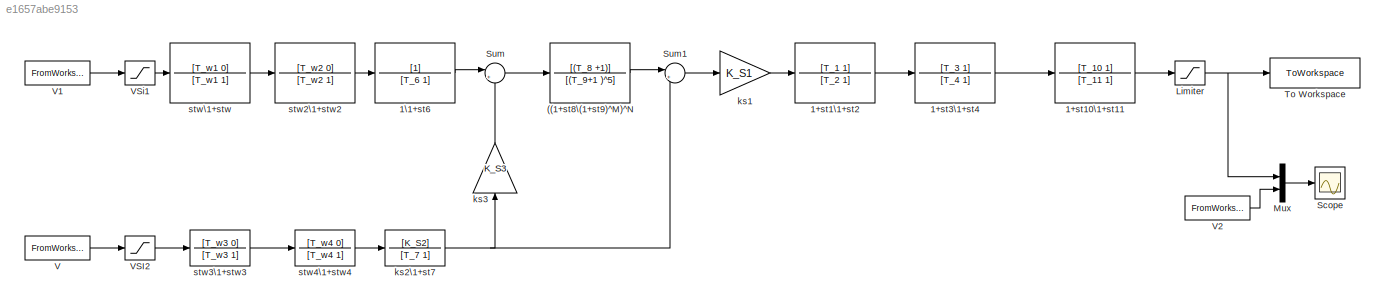
MODEL slx_e1657abe9153
KIND model
CONFIG AbsTol = auto
CONFIG EnableMultiTasking = off
CONFIG FixedStep = 0.005
CONFIG MaxStep = auto
CONFIG MinStep = auto
CONFIG RelTol = 1e-3
CONFIG SampleTimeConstraint = Unconstrained
CONFIG Solver = FixedStepAuto
CONFIG SolverName = FixedStepAuto
CONFIG StartTime = 0.0
CONFIG StopTime = 5
BLOCK [TransferFcn] ((1+st8\(1+st9)^M)^N
  Denominator = [(T_9+1 )^5]
  Numerator = [(T_8 +1)]
BLOCK [TransferFcn] 1+st10\1+st11
  Denominator = [T_11 1]
  Numerator = [T_10 1]
BLOCK [TransferFcn] 1+st1\1+st2
  Denominator = [T_2 1]
  Numerator = [T_1 1]
BLOCK [TransferFcn] 1+st3\1+st4
  Denominator = [T_4 1]
  Numerator = [T_3 1]
BLOCK [TransferFcn] 1\1+st6
  Denominator = [T_6 1]
BLOCK [Saturate] Limiter 
  LowerLimit = V_STMIN
  UpperLimit = V_STMAX
BLOCK [Mux] Mux
  DisplayOption = bar
  Inputs = 2
  Ports = [2, 1]
BLOCK [Scope] Scope
  Floating = off
  NumInputPorts = 1
  Ports = [1]
  ScopeSpecificationString = Simulink.scopes.TimeScopeBlockCfg('CurrentConfiguration', extmgr.ConfigurationSet(extmgr.Configuration('Core','General UI',true,'FigureColor',[1 1 1]),extmgr.Configuration('Core','Source UI',true),extmgr.Configuration('Sources','WiredSimulink',true),extmgr.Configuration('Visuals','Time Domain',true,'SerializedDisplays',{struct('MinYLimReal','-0.0262','MaxYLimReal','0.01056','YLabelReal','','MinYLi...<+1421ch>
BLOCK [Sum] Sum
  Inputs = |++
  Ports = [2, 1]
BLOCK [Sum] Sum1
  Inputs = |+-
  Ports = [2, 1]
BLOCK [ToWorkspace] To Workspace
  FixptAsFi = on
  MaxDataPoints = inf
  Ports = [1]
  SampleTime = -1
  SaveFormat = Timeseries
  VariableName = VPSS
BLOCK [FromWorkspace] V
  VariableName = [time,P]
BLOCK [FromWorkspace] V1
  VariableName = [time,w]
BLOCK [FromWorkspace] V2
  VariableName = [t,V_PSS]
BLOCK [Saturate] VSI2
  LowerLimit = V_S2MIN
  UpperLimit = V_S2MAX
BLOCK [Saturate] VSi1
  LowerLimit = V_S1MIN
  UpperLimit = V_S1MAX
BLOCK [Gain] ks1
  Gain = K_S1
  OutDataTypeStr = Inherit: Same as input
  ParamDataTypeStr = Inherit: Same as input
  SaturateOnIntegerOverflow = on
BLOCK [TransferFcn] ks2\1+st7
  Denominator = [T_7 1]
  Numerator = [K_S2]
BLOCK [Gain] ks3
  Gain = K_S3
  NameLocation = right
  OutDataTypeStr = Inherit: Same as input
  ParamDataTypeStr = Inherit: Same as input
  SaturateOnIntegerOverflow = on
BLOCK [TransferFcn] stw2\1+stw2
  Denominator = [T_w2 1]
  Numerator = [T_w2 0]
BLOCK [TransferFcn] stw3\1+stw3
  Denominator = [T_w3 1]
  Numerator = [T_w3 0]
BLOCK [TransferFcn] stw4\1+stw4
  Denominator = [T_w4 1]
  Numerator = [T_w4 0]
BLOCK [TransferFcn] stw\1+stw
  Denominator = [T_w1 1]
  Numerator = [T_w1 0]
LINE ((1+st8\(1+st9)^M)^N:1 -> Sum1:1
LINE 1+st10\1+st11:1 -> Limiter :1
LINE 1+st1\1+st2:1 -> 1+st3\1+st4:1
LINE 1+st3\1+st4:1 -> 1+st10\1+st11:1
LINE 1\1+st6:1 -> Sum:1
NET Limiter :1 -> Mux:1, To Workspace:1
LINE Mux:1 -> Scope:1
LINE Sum1:1 -> ks1:1
LINE Sum:1 -> ((1+st8\(1+st9)^M)^N:1
LINE V1:1 -> VSi1:1
LINE V2:1 -> Mux:2
LINE V:1 -> VSI2:1
LINE VSI2:1 -> stw3\1+stw3:1
LINE VSi1:1 -> stw\1+stw:1
LINE ks1:1 -> 1+st1\1+st2:1
NET ks2\1+st7:1 -> Sum1:2, ks3:1
LINE ks3:1 -> Sum:2
LINE stw2\1+stw2:1 -> 1\1+st6:1
LINE stw3\1+stw3:1 -> stw4\1+stw4:1
LINE stw4\1+stw4:1 -> ks2\1+st7:1
LINE stw\1+stw:1 -> stw2\1+stw2:1
note: NET lines group one-source signal fan-out (src -> all destinations, sorted); 1:1 wires keep LINE
